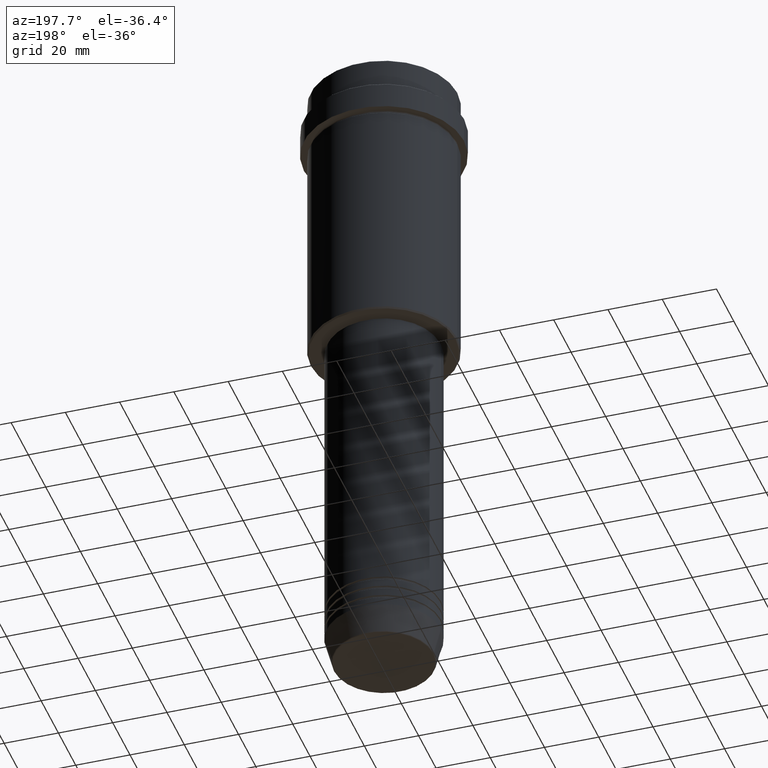
[diagram: clean part render]
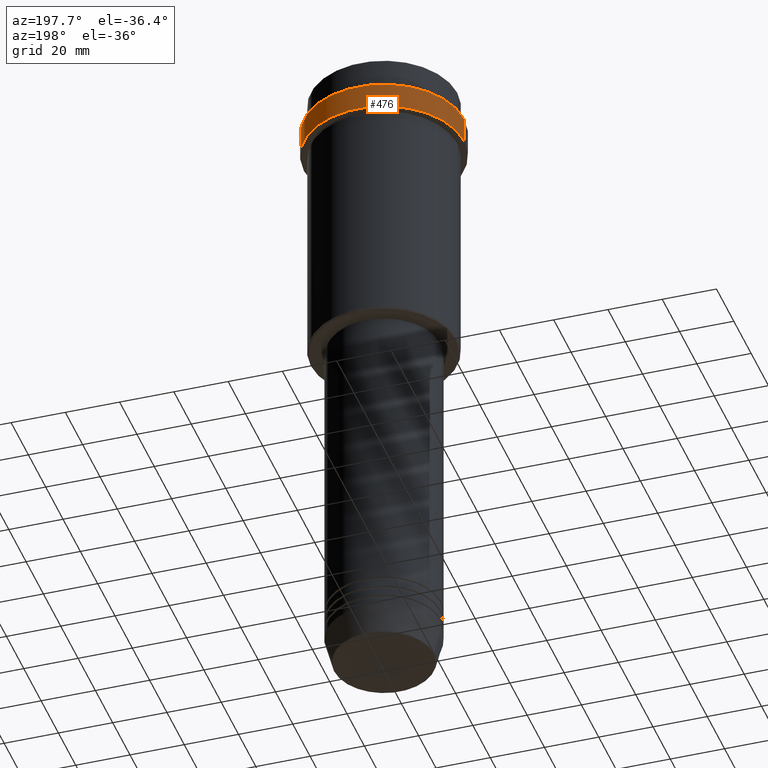
[diagram: same view with one face highlighted and labeled with its STEP entity id]
A machine part, auxiliary view. The second image highlights one B-rep face of the part: STEP entity #476.
In plain terms, the highlighted cylindrical surface (partial cylindrical patch) has radius 29.5 mm, axis along (-0, -0, 1).
Its self-contained STEP definition (entity closure, byte-faithful):
#16 = CARTESIAN_POINT ( 'NONE',  ( 29.50000000000000000, 0.000000000000000000, -12.50000000000008704 ) ) ;
#59 = CIRCLE ( 'NONE', #741, 29.49999999999999645 ) ;
#98 = DIRECTION ( 'NONE',  ( -0.000000000000000000, -0.000000000000000000, 1.000000000000000000 ) ) ;
#132 = DIRECTION ( 'NONE',  ( 0.000000000000000000, 0.000000000000000000, -1.000000000000000000 ) ) ;
#159 = CARTESIAN_POINT ( 'NONE',  ( -29.49999999999999645, 3.612708057484690815E-15, -22.00000000000000711 ) ) ;
#183 = LINE ( 'NONE', #835, #442 ) ;
#228 = CARTESIAN_POINT ( 'NONE',  ( 0.000000000000000000, 0.000000000000000000, 0.000000000000000000 ) ) ;
#246 = CARTESIAN_POINT ( 'NONE',  ( 0.000000000000000000, 0.000000000000000000, -12.50000000000008704 ) ) ;
#273 = VERTEX_POINT ( 'NONE', #159 ) ;
#322 = CARTESIAN_POINT ( 'NONE',  ( 29.49999999999999645, 0.000000000000000000, -22.00000000000000711 ) ) ;
#324 = CARTESIAN_POINT ( 'NONE',  ( 0.000000000000000000, 0.000000000000000000, -22.00000000000000711 ) ) ;
#352 = DIRECTION ( 'NONE',  ( -0.000000000000000000, -0.000000000000000000, 1.000000000000000000 ) ) ;
#354 = EDGE_CURVE ( 'NONE', #273, #758, #183, .T. ) ;
#377 = ORIENTED_EDGE ( 'NONE', *, *, #1105, .F. ) ;
#442 = VECTOR ( 'NONE', #98, 1000.000000000000000 ) ;
#476 = ADVANCED_FACE ( 'NONE', ( #546 ), #892, .T. ) ;
#486 = DIRECTION ( 'NONE',  ( 1.000000000000000000, 0.000000000000000000, 0.000000000000000000 ) ) ;
#540 = CIRCLE ( 'NONE', #1388, 29.50000000000000000 ) ;
#546 = FACE_OUTER_BOUND ( 'NONE', #860, .T. ) ;
#547 = EDGE_CURVE ( 'NONE', #1020, #273, #59, .T. ) ;
#557 = VERTEX_POINT ( 'NONE', #16 ) ;
#668 = DIRECTION ( 'NONE',  ( -0.000000000000000000, -0.000000000000000000, 1.000000000000000000 ) ) ;
#706 = ORIENTED_EDGE ( 'NONE', *, *, #547, .T. ) ;
#741 = AXIS2_PLACEMENT_3D ( 'NONE', #324, #875, #868 ) ;
#758 = VERTEX_POINT ( 'NONE', #938 ) ;
#835 = CARTESIAN_POINT ( 'NONE',  ( -29.50000000000000000, 3.612708057484691604E-15, 0.000000000000000000 ) ) ;
#855 = AXIS2_PLACEMENT_3D ( 'NONE', #228, #668, #1211 ) ;
#860 = EDGE_LOOP ( 'NONE', ( #706, #1153, #1289, #377 ) ) ;
#868 = DIRECTION ( 'NONE',  ( 1.000000000000000000, 0.000000000000000000, 0.000000000000000000 ) ) ;
#875 = DIRECTION ( 'NONE',  ( -0.000000000000000000, -0.000000000000000000, 1.000000000000000000 ) ) ;
#892 = CYLINDRICAL_SURFACE ( 'NONE', #855, 29.50000000000000000 ) ;
#938 = CARTESIAN_POINT ( 'NONE',  ( -29.50000000000000000, 3.612708057484691604E-15, -12.50000000000008704 ) ) ;
#1020 = VERTEX_POINT ( 'NONE', #322 ) ;
#1105 = EDGE_CURVE ( 'NONE', #1020, #557, #1256, .T. ) ;
#1142 = CARTESIAN_POINT ( 'NONE',  ( 29.50000000000000000, 0.000000000000000000, 0.000000000000000000 ) ) ;
#1153 = ORIENTED_EDGE ( 'NONE', *, *, #354, .T. ) ;
#1211 = DIRECTION ( 'NONE',  ( 1.000000000000000000, 0.000000000000000000, 0.000000000000000000 ) ) ;
#1256 = LINE ( 'NONE', #1142, #1363 ) ;
#1289 = ORIENTED_EDGE ( 'NONE', *, *, #1365, .T. ) ;
#1363 = VECTOR ( 'NONE', #352, 1000.000000000000000 ) ;
#1365 = EDGE_CURVE ( 'NONE', #758, #557, #540, .T. ) ;
#1388 = AXIS2_PLACEMENT_3D ( 'NONE', #246, #132, #486 ) ;